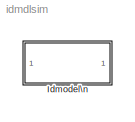
MODEL idmdlsim
KIND model
CONFIG AbsTol = auto
CONFIG FixedStep = auto
CONFIG MaxStep = auto
CONFIG MinStep = auto
CONFIG RelTol = 1e-3
CONFIG Solver = ode45
CONFIG SolverMode = Auto
CONFIG StartTime = 0.0
CONFIG StopTime = 10
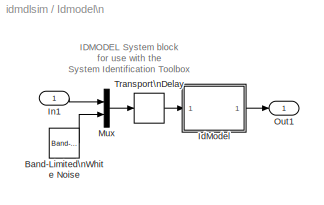
BLOCK [SubSystem] Idmodel\n
  MaskCallbackString = idmdlmask('MaskLTICallback',gcb)||idmdlmask('MaskLTICallback',gcb)|
  MaskDescription = Enter any Idmodel object (Idpoly, Idss, Idarx, Idgrey or Idproc).\nFor simulations  with noise, Seed(s) may be left empty for random restarts. Enter a\n many seeds as there are outputs for specific realizations.
  MaskDisplay = disp(sysname)
  MaskEnableString = on,off,on,on
  MaskHelp = The IDMODEL  block 	accepts any IDMODEL defined in the System Identification Toolbox: IDPOLY, IDSS,\nIDGREY, IDARX and IDPROC. <p><P>\n\nIn the editiable text box enter the name of any IDMODEL in workspace.<p><p>\n\n For IDMODELS in state-space (IDSS and IDGREY) the initial state vector may be\nspecified. Use 'z' (within quotes) or 0 for zero initial conditions, use 'm' for the\nModel's own initia...<+945ch>
  MaskIconFrame = on
  MaskIconOpaque = on
  MaskIconRotate = none
  MaskIconUnits = autoscale
  MaskInitialization = [A,B,C,D,Ts,X0,sysname]=idmdlmask('Initialize',gcb,sys,IC,noi,seed);
  MaskPromptString = idmodel variable|Initial state (state space only: 'z', 'm', or vector )|Add noise|Noise seed(s)
  MaskStyleString = edit,edit,checkbox,edit
  MaskToolTipString = on,on,on,on
  MaskTunableValueString = off,on,on,on
  MaskType = Idmodel Block
  MaskValueString = idpoly(1,1)|[]|on|
  MaskVarAliasString = ,,,
  MaskVariables = sys=@1;IC=@2;noi=@3;seed=&4;
  MaskVisibilityString = on,on,on,on
  Ports = [1, 1]
  TreatAsAtomicUnit = off
BLOCK [Reference] Idmodel\n/Band-Limited\nWhite Noise  REF=simulink/Sources/Band-Limited\nWhite Noise
  Cov = 1
  Ports = [0, 1]
  SourceBlock = simulink/Sources/Band-Limited\nWhite Noise
  SourceType = Band-Limited White Noise.
  Ts = 1
  VectorParams1D = on
  seed = [-1364]
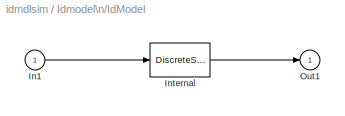
BLOCK [SubSystem] Idmodel\n/IdModel
  Ports = [1, 1]
  TreatAsAtomicUnit = off
BLOCK [Inport] Idmodel\n/IdModel/In1
BLOCK [DiscreteStateSpace] Idmodel\n/IdModel/Internal
  A = A
  B = B
  C = C
  D = D
  SampleTime = Ts
  X0 = X0
BLOCK [Outport] Idmodel\n/IdModel/Out1
  InitialOutput = 0
BLOCK [Inport] Idmodel\n/In1
BLOCK [Mux] Idmodel\n/Mux
  DisplayOption = bar
  Inputs = 2
  Ports = [2, 1]
BLOCK [Outport] Idmodel\n/Out1
BLOCK [TransportDelay] Idmodel\n/Transport\nDelay
  DelayTime = [0  0]
ANNOTATION Idmodel\n: IDMODEL System block\nfor use with the\nSystem Identification Toolbox
LINE Idmodel\n/Band-Limited\nWhite Noise:1 -> Idmodel\n/Mux:2
LINE Idmodel\n/IdModel/In1:1 -> Idmodel\n/IdModel/Internal:1
LINE Idmodel\n/IdModel/Internal:1 -> Idmodel\n/IdModel/Out1:1
LINE Idmodel\n/IdModel:1 -> Idmodel\n/Out1:1
LINE Idmodel\n/In1:1 -> Idmodel\n/Mux:1
LINE Idmodel\n/Mux:1 -> Idmodel\n/Transport\nDelay:1
LINE Idmodel\n/Transport\nDelay:1 -> Idmodel\n/IdModel:1
